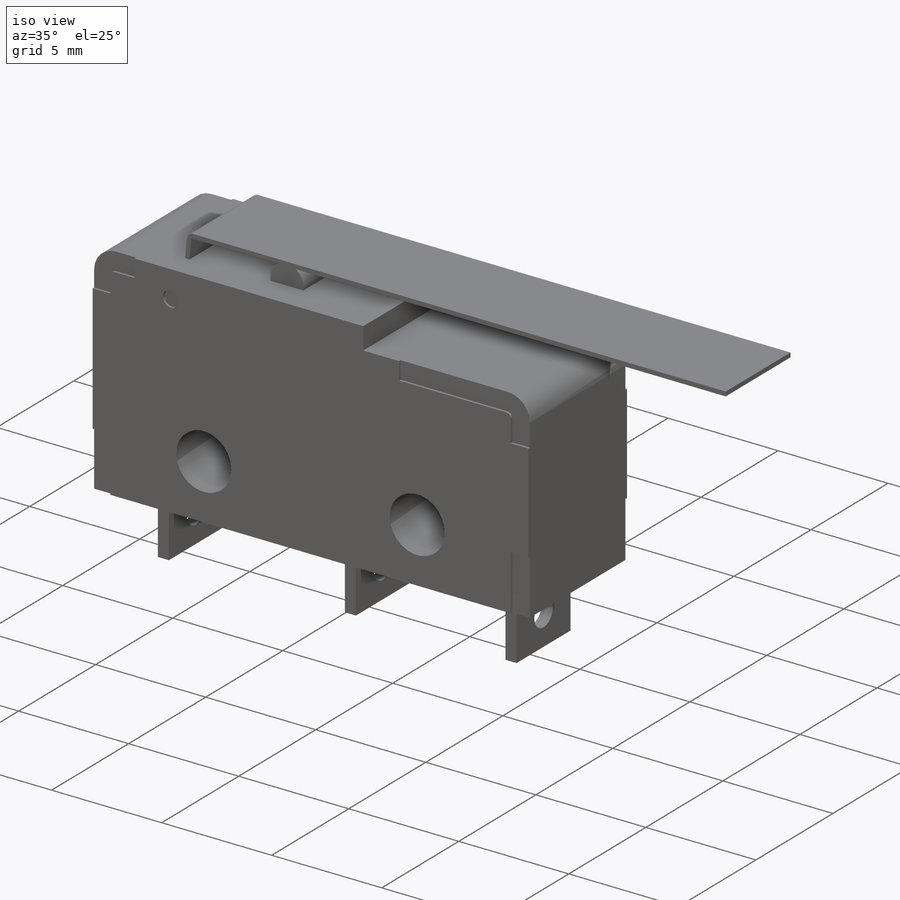
[diagram: iso view]
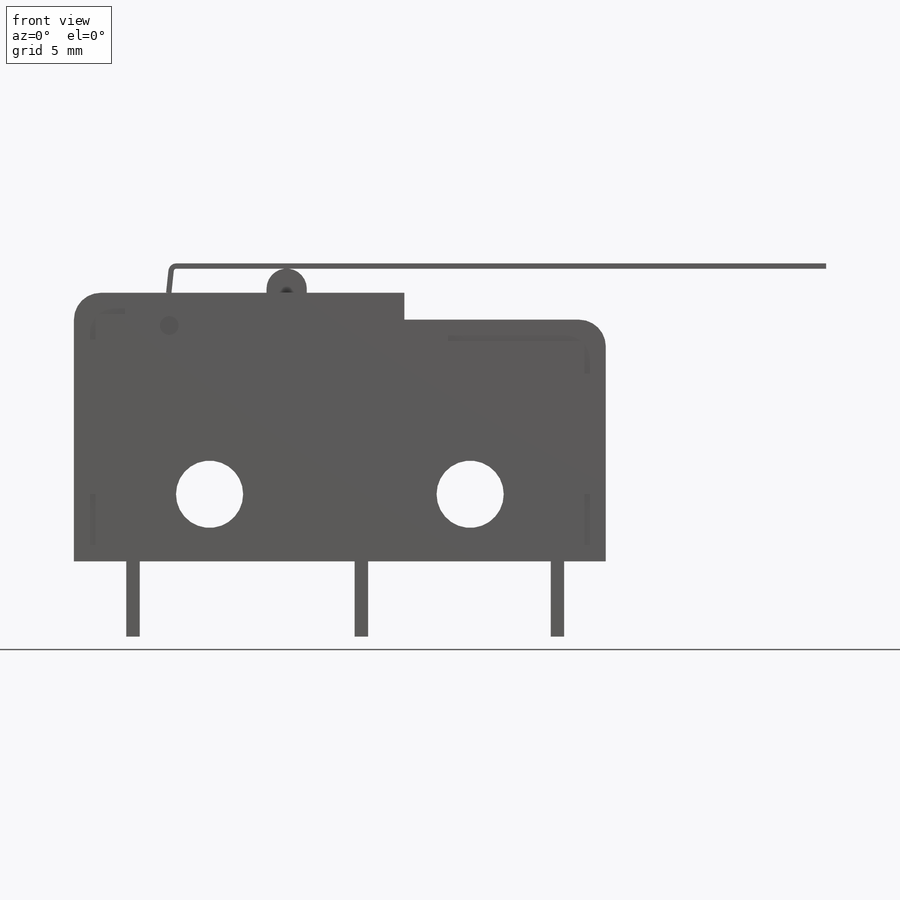
[diagram: front view]
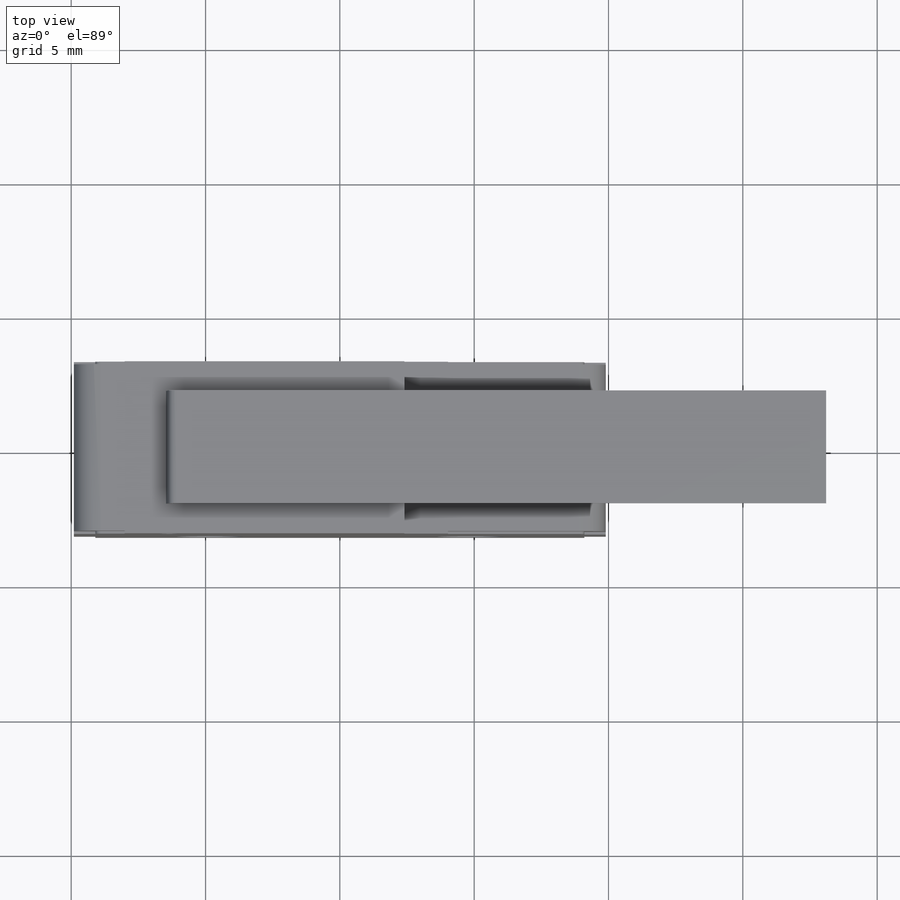
[diagram: top view]
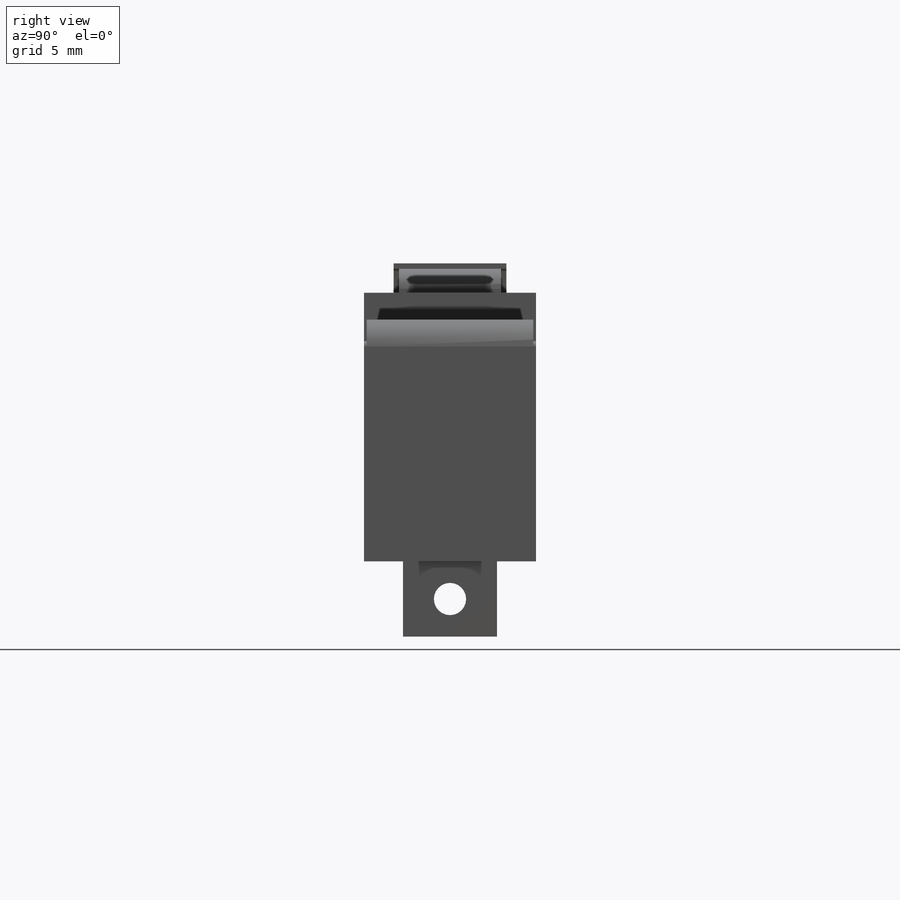
[diagram: right view]
SOLIDWORKS PART (.sldprt)
format: sldprt  version: not decoded by parser v0  size: 388,096 bytes
history: native  units: mm
features: sketch x11, cut_extrude x5, extrude x3, fillet x3, material x1, plane x1 (+12 scaffold rows collapsed)
feature tree (36):
  scaffold x12  (default folders/planes/origin — collapsed)
  material  "Material <not specified>"
  sketch  "Sketch1"  dims[c1.D4=2.5mm c1.D1=10.0mm c1.D2=19.8mm c1.D3=9.7mm c1.D5=7.5mm c1.D6=4.85mm c2.D2=19.8mm c2.D7=1.0mm c2.D8=7.5mm c2.D9=9.9mm]
  extrude  "Extrude1"  Depth=3.2mm
  fillet  "Fillet1"  Radius=1mm
  sketch  "Sketch2"  dims[D1=0.8mm]
  cut_extrude  "Cut-Extrude1"  Depth=0.1mm
  sketch  "Sketch3"  dims[D1=0.0mm D2=0.0mm D3=0.0mm D4=0.0mm]
  cut_extrude  "Cut-Extrude2"  Depth=0.1mm
  sketch  "Sketch5"  dims[D1=0.5mm D2=2.8mm D3=0.25mm D4=1.8mm D5=7.3mm D6=8.5mm]
  extrude  "Extrude3"  Depth=1.75mm
  sketch  "Sketch6"  dims[D1=~0.592835mm]
  cut_extrude  "Cut-Extrude3"  [1 undecoded]
  sketch  "Sketch8"  dims[D1=~0.367534mm]
  cut_extrude  "Cut-Extrude4"  Depth=0.1mm
  sketch  "Sketch9"  dims[D1=0.0mm]
  cut_extrude  "Cut-Extrude5"  Depth=0.1mm
  sketch  "Sketch10"  dims[c1.D1=17.7mm c1.D2=1.0mm c1.D3=5.0mm c1.D4=7.0mm c2.D4=110.0deg c2.D5=5.0mm c3.D5=104.0deg c3.D6=7.0mm c3.D7=1.0mm c4.D7=96.0deg]
  sketch  "Sketch11"  dims[D1=0.0mm]
  extrude  "Extrude4"  Depth=1.9mm
  sketch  "Sketch12"  dims[c1.D1=17.7mm c2.D1=90.0deg c3.D1=28.0mm c4.D1=2.1mm c4.D2=2.1mm c4.D5=0.1mm c4.D6=0.1mm c4.D7=5.0mm]
  fillet  "Fillet6"  Radius=0.1mm
  fillet  "Fillet7"  Radius=0.3mm
  plane  "Board Surface"  Offset=2.5mm
  sketch  "Component_Outline"
decode coverage: 20 of 22 modeling features carry decoded parameters
note: ~ marks probable driven/reference dimensions
note: 1 parameter value undecoded
note: suppression state not decoded; provenance and decode notes live in map.json
